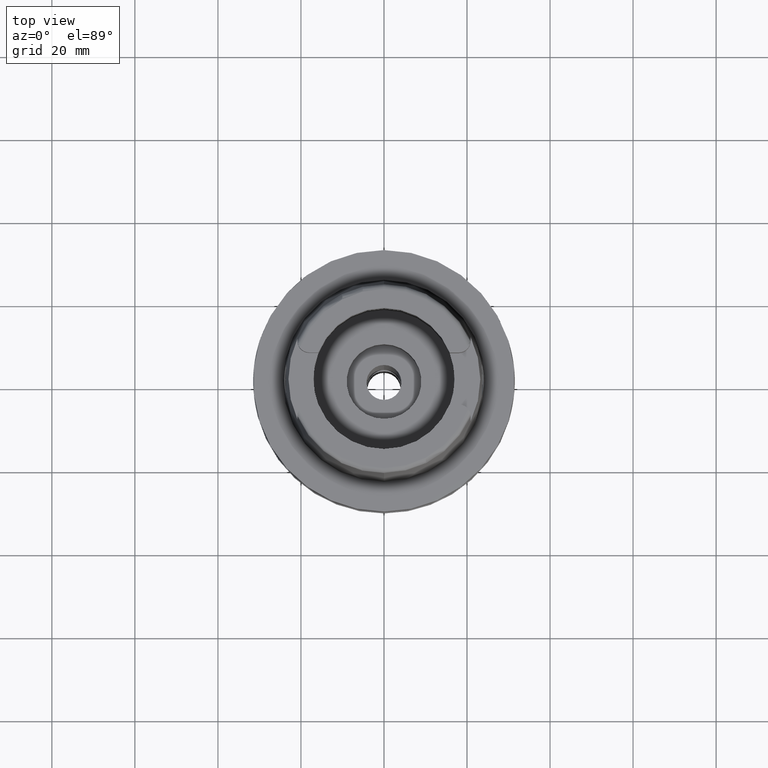
[diagram: clean part render]
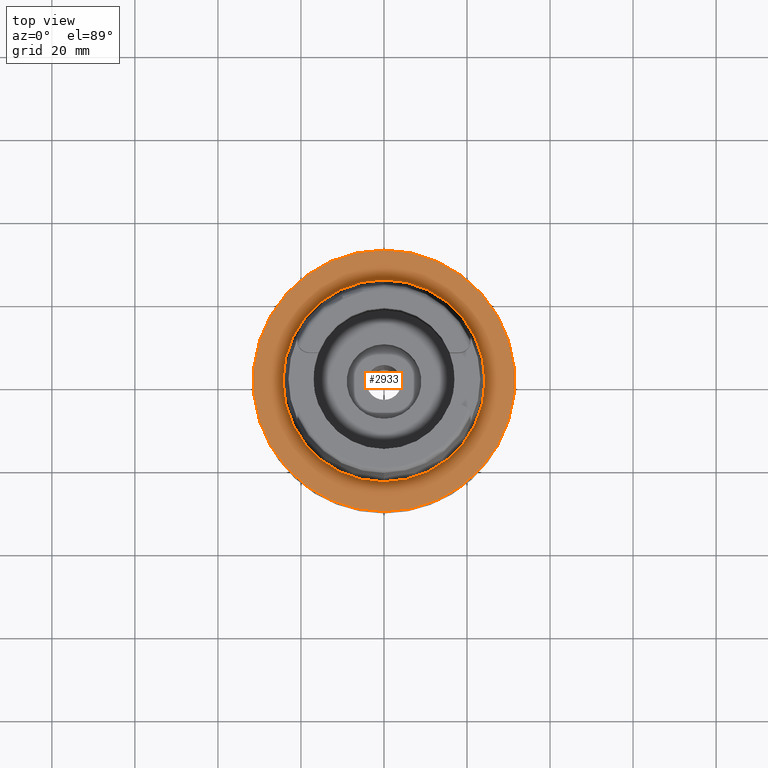
[diagram: same view with one face highlighted and labeled with its STEP entity id]
A machine part, top view. The second image highlights one B-rep face of the part: STEP entity #2933.
In plain terms, the highlighted planar face has unit normal (0, 0, 1).
Its self-contained STEP definition (entity closure, byte-faithful):
#618=CARTESIAN_POINT('',(0.E0,0.E0,3.410605131648E-13));
#619=DIRECTION('',(0.E0,0.E0,-1.E0));
#620=DIRECTION('',(0.E0,-1.E0,0.E0));
#621=AXIS2_PLACEMENT_3D('',#618,#619,#620);
#626=CARTESIAN_POINT('',(0.E0,0.E0,3.410605131648E-13));
#627=DIRECTION('',(0.E0,0.E0,-1.E0));
#628=DIRECTION('',(0.E0,1.E0,0.E0));
#629=AXIS2_PLACEMENT_3D('',#626,#627,#628);
#634=CARTESIAN_POINT('',(0.E0,0.E0,-1.705302565824E-12));
#635=DIRECTION('',(0.E0,0.E0,1.E0));
#636=DIRECTION('',(0.E0,-1.E0,0.E0));
#637=AXIS2_PLACEMENT_3D('',#634,#635,#636);
#642=CARTESIAN_POINT('',(0.E0,0.E0,-1.705302565824E-12));
#643=DIRECTION('',(0.E0,0.E0,1.E0));
#644=DIRECTION('',(0.E0,1.E0,0.E0));
#645=AXIS2_PLACEMENT_3D('',#642,#643,#644);
#2279=CARTESIAN_POINT('',(0.E0,-2.431503482329E1,-9.485745522397E-13));
#2280=VERTEX_POINT('',#2279);
#2281=CARTESIAN_POINT('',(0.E0,2.431503482329E1,-1.705302565824E-12));
#2282=VERTEX_POINT('',#2281);
#2536=CARTESIAN_POINT('',(0.E0,3.15E1,1.894780628694E-13));
#2537=VERTEX_POINT('',#2536);
#2538=CARTESIAN_POINT('',(0.E0,-3.15E1,3.410605131648E-13));
#2539=VERTEX_POINT('',#2538);
#2918=CARTESIAN_POINT('',(0.E0,0.E0,0.E0));
#2919=DIRECTION('',(0.E0,0.E0,1.E0));
#2920=DIRECTION('',(0.E0,1.E0,0.E0));
#2921=AXIS2_PLACEMENT_3D('',#2918,#2919,#2920);
#2922=PLANE('',#2921);
#2924=ORIENTED_EDGE('',*,*,#2923,.T.);
#2926=ORIENTED_EDGE('',*,*,#2925,.T.);
#2927=EDGE_LOOP('',(#2924,#2926));
#2928=FACE_OUTER_BOUND('',#2927,.F.);
#2929=ORIENTED_EDGE('',*,*,#2891,.T.);
#2930=ORIENTED_EDGE('',*,*,#2853,.T.);
#2931=EDGE_LOOP('',(#2929,#2930));
#2932=FACE_BOUND('',#2931,.F.);
#622=CIRCLE('',#621,3.15E1);
#630=CIRCLE('',#629,3.15E1);
#638=CIRCLE('',#637,2.431503482329E1);
#646=CIRCLE('',#645,2.431503482329E1);
#2853=EDGE_CURVE('',#2282,#2280,#646,.T.);
#2891=EDGE_CURVE('',#2280,#2282,#638,.T.);
#2923=EDGE_CURVE('',#2539,#2537,#622,.T.);
#2925=EDGE_CURVE('',#2537,#2539,#630,.T.);
#2933=ADVANCED_FACE('',(#2928,#2932),#2922,.T.);